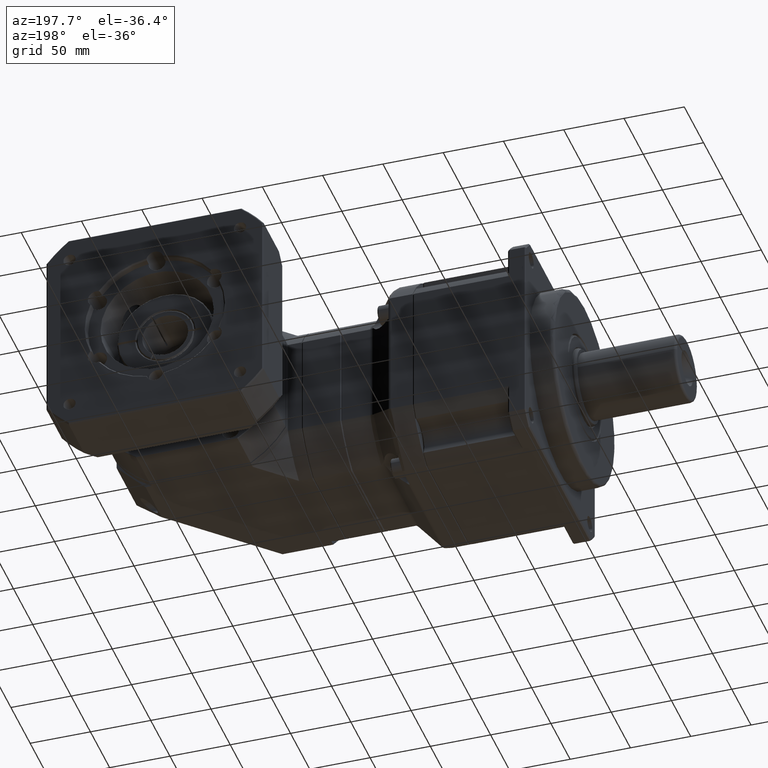
[diagram: clean part render]
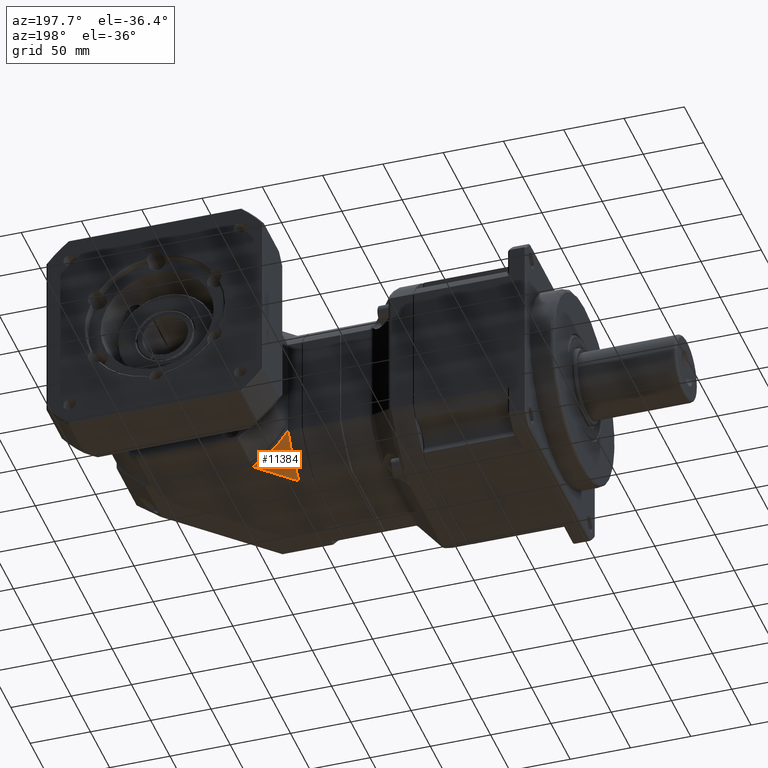
[diagram: same view with one face highlighted and labeled with its STEP entity id]
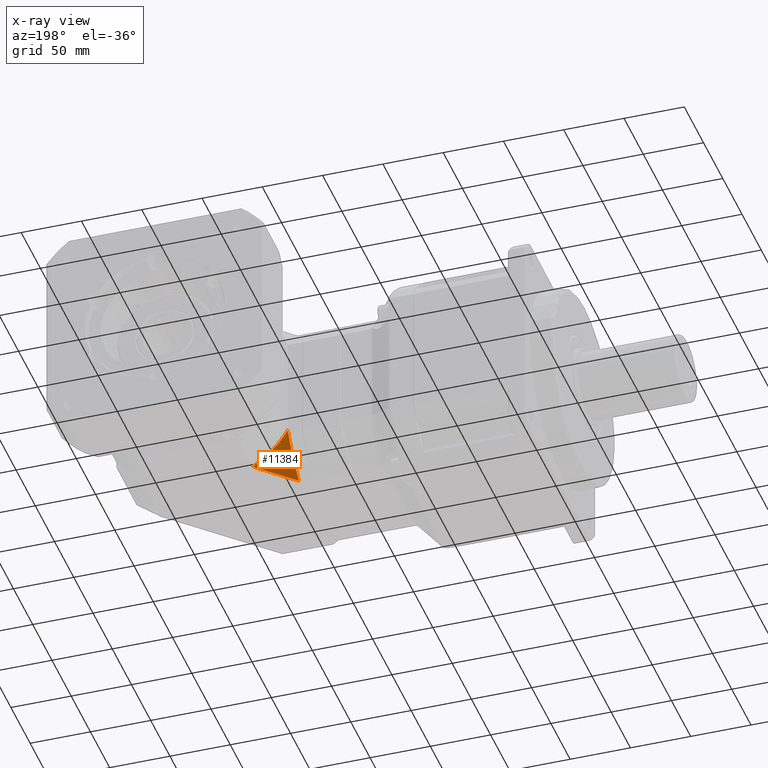
[diagram: x-ray of the same camera — body ghosted, the highlighted face saturated]
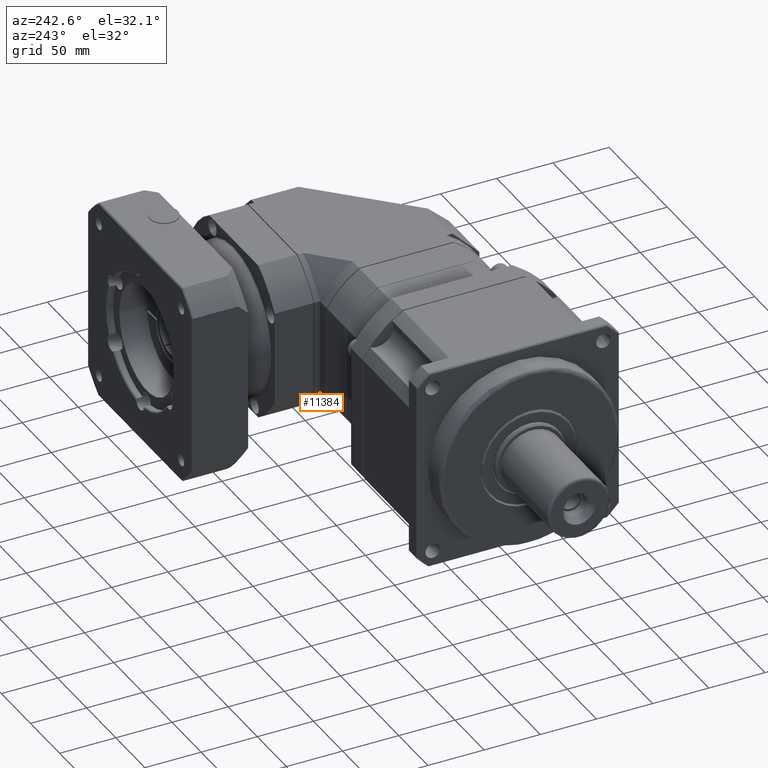
[diagram: same view with one face highlighted and labeled with its STEP entity id]
A machine part, auxiliary view. The second image highlights one B-rep face of the part: STEP entity #11384.
The next image is the same camera in x-ray: the body ghosted, the highlighted face saturated — about 0% of this face is hidden behind the body in this view.
A second angle (auxiliary view) of the same face is appended — the face is thin or edge-on in the first view.
In plain terms, the highlighted face is a freeform B-spline surface patch.
Its self-contained STEP definition (entity closure, byte-faithful):
#33=B_SPLINE_SURFACE_WITH_KNOTS('',3,3,((#18666,#18667,#18668,#18669),(#18670,
#18671,#18672,#18673),(#18674,#18675,#18676,#18677),(#18678,#18679,#18680,
#18681),(#18682,#18683,#18684,#18685)),.UNSPECIFIED.,.F.,.F.,.F.,(4,1,4),
(4,4),(0.,0.571428571428571,1.),(0.,1.),.UNSPECIFIED.);
#852=LINE('',#18690,#1402);
#1402=VECTOR('',#14910,40.9911521910038);
#2801=FACE_OUTER_BOUND('',#3779,.T.);
#3779=EDGE_LOOP('',(#8795,#8796,#8797));
#4632=CIRCLE('',#12546,82.5);
#4633=CIRCLE('',#12547,82.5);
#5399=VERTEX_POINT('',#18686);
#5400=VERTEX_POINT('',#18687);
#5401=VERTEX_POINT('',#18689);
#6632=EDGE_CURVE('',#5399,#5400,#4632,.T.);
#6633=EDGE_CURVE('',#5401,#5399,#852,.T.);
#6634=EDGE_CURVE('',#5400,#5401,#4633,.T.);
#8795=ORIENTED_EDGE('',*,*,#6632,.F.);
#8796=ORIENTED_EDGE('',*,*,#6633,.F.);
#8797=ORIENTED_EDGE('',*,*,#6634,.F.);
#11384=ADVANCED_FACE('',(#2801),#33,.T.);
#12546=AXIS2_PLACEMENT_3D('',#18688,#14908,#14909);
#12547=AXIS2_PLACEMENT_3D('',#18691,#14911,#14912);
#14908=DIRECTION('center_axis',(2.01251306492253E-16,1.,5.82867087928207E-16));
#14909=DIRECTION('ref_axis',(-1.,2.01251306492254E-16,-5.1489005651459E-16));
#14910=DIRECTION('',(0.707106781186548,0.707106781186547,3.42880237922145E-16));
#14911=DIRECTION('center_axis',(-1.,2.01251306492254E-16,-5.1489005651459E-16));
#14912=DIRECTION('ref_axis',(-5.14890056514591E-16,-5.82867087928207E-16,
1.));
#18666=CARTESIAN_POINT('Ctrl Pts',(152.844650275927,61.4348682652134,-28.0146919128479));
#18667=CARTESIAN_POINT('Ctrl Pts',(152.844650275927,61.4348682652134,-28.0146919128479));
#18668=CARTESIAN_POINT('Ctrl Pts',(152.844650275927,61.4348682652134,-28.0146919128479));
#18669=CARTESIAN_POINT('Ctrl Pts',(152.844650275927,61.4348682652134,-28.0146919128479));
#18670=CARTESIAN_POINT('Ctrl Pts',(156.863039184678,61.4348682652134,-34.8052771519166));
#18671=CARTESIAN_POINT('Ctrl Pts',(155.524353382971,60.0961824635071,-34.8052771519166));
#18672=CARTESIAN_POINT('Ctrl Pts',(154.183336077633,58.7551651581689,-34.8052771519166));
#18673=CARTESIAN_POINT('Ctrl Pts',(152.844650275927,57.4164793564625,-34.8052771519166));
#18674=CARTESIAN_POINT('Ctrl Pts',(165.611911206889,61.4348682652134,-45.6711141027896));
#18675=CARTESIAN_POINT('Ctrl Pts',(161.355928206514,57.1788852648386,-45.6711141027896));
#18676=CARTESIAN_POINT('Ctrl Pts',(157.100633276302,52.9235903346259,-45.6711141027896));
#18677=CARTESIAN_POINT('Ctrl Pts',(152.844650275927,48.6676073342512,-45.6711141027896));
#18678=CARTESIAN_POINT('Ctrl Pts',(176.736833029534,61.4348682652134,-53.9860219141933));
#18679=CARTESIAN_POINT('Ctrl Pts',(168.772783015743,53.4708182514228,-53.9860219141933));
#18680=CARTESIAN_POINT('Ctrl Pts',(160.808700289718,45.506735525397,-53.9860219141933));
#18681=CARTESIAN_POINT('Ctrl Pts',(152.844650275927,37.5426855116064,-53.9860219141933));
#18682=CARTESIAN_POINT('Ctrl Pts',(181.829771958836,61.4348682652134,-56.9998135957564));
#18683=CARTESIAN_POINT('Ctrl Pts',(172.168064731199,51.7731610375772,-56.9998135957564));
#18684=CARTESIAN_POINT('Ctrl Pts',(162.506357503563,42.1114538099411,-56.9998135957564));
#18685=CARTESIAN_POINT('Ctrl Pts',(152.844650275927,32.4497465823049,-56.9998135957564));
#18686=CARTESIAN_POINT('',(181.829771958836,61.4348682652134,-56.9998135957564));
#18687=CARTESIAN_POINT('',(152.844650275927,61.4348682652134,-28.0146919128479));
#18688=CARTESIAN_POINT('Origin',(223.844650275927,61.4348682652134,14.0001864042436));
#18689=CARTESIAN_POINT('',(152.844650275927,32.4497465823048,-56.9998135957565));
#18690=CARTESIAN_POINT('',(181.829771958836,61.4348682652134,-56.9998135957564));
#18691=CARTESIAN_POINT('Origin',(152.844650275927,-9.56513173478666,14.0001864042435));